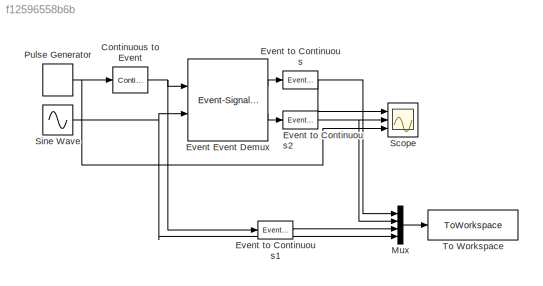
MODEL slx_f12596558b6b
KIND model
CONFIG AbsTol = auto
CONFIG EnableMultiTasking = off
CONFIG FixedStep = auto
CONFIG MaxStep = auto
CONFIG MinStep = auto
CONFIG RelTol = 1e-3
CONFIG SampleTimeConstraint = Unconstrained
CONFIG SolverName = VariableStepAuto
CONFIG StartTime = 0.0
CONFIG StopTime = 10.0
BLOCK [Reference] Continuous to Event  REF=neuromorphic_blocks/Events Transmission Blocks/Continuous to Event  (lib defined in slx_48105648e755)
  Ports = [1, 1]
  SourceBlock = neuromorphic_blocks/Events Transmission Blocks/Continuous to Event
  SourceProductName = Neuromorphic Toolbox
  SourceType = Continuous to Event
BLOCK [Reference] Event Event Demux  REF=neuromorphic_blocks/Auxiliary Blocks/Event-Signal Multiplier  (lib defined in slx_48105648e755)
  Ports = [2, 2]
  SourceBlock = neuromorphic_blocks/Auxiliary Blocks/Event-Signal Multiplier
  SourceProductName = NeurCont Toolbox
  SourceType = Event Demux
BLOCK [Reference] Event to Continuous  REF=neuromorphic_blocks/Events Transmission Blocks/Event to Continuous  (lib defined in slx_48105648e755)
  Ports = [1, 1]
  SourceBlock = neuromorphic_blocks/Events Transmission Blocks/Event to Continuous
  SourceProductName = Neuromorphic Toolbox
  SourceType = Event to Continuous
BLOCK [Reference] Event to Continuous1  REF=neuromorphic_blocks/Events Transmission Blocks/Event to Continuous  (lib defined in slx_48105648e755)
  Ports = [1, 1]
  SourceBlock = neuromorphic_blocks/Events Transmission Blocks/Event to Continuous
  SourceProductName = Neuromorphic Toolbox
  SourceType = Event to Continuous
BLOCK [Reference] Event to Continuous2  REF=neuromorphic_blocks/Events Transmission Blocks/Event to Continuous  (lib defined in slx_48105648e755)
  Ports = [1, 1]
  SourceBlock = neuromorphic_blocks/Events Transmission Blocks/Event to Continuous
  SourceProductName = Neuromorphic Toolbox
  SourceType = Event to Continuous
BLOCK [Mux] Mux
  DisplayOption = bar
  Ports = [4, 1]
BLOCK [DiscretePulseGenerator] Pulse Generator
  Amplitude = 20
  Period = 0.3
  Ports = [0, 1]
  PulseType = Time based
  PulseWidth = 5
BLOCK [Scope] Scope
  Floating = off
  NumInputPorts = 3
  Ports = [3]
  ScopeSpecificationString = Simulink.scopes.TimeScopeBlockCfg('CurrentConfiguration', extmgr.ConfigurationSet(extmgr.Configuration('Core','General UI',true),extmgr.Configuration('Core','Source UI',true),extmgr.Configuration('Sources','WiredSimulink',true,'SampleTime','0.001'),extmgr.Configuration('Visuals','Time Domain',true,'SerializedDisplays',{struct('MinYLimReal','-0.125','MaxYLimReal','1.125','YLabelReal','','MinYLimMag...<+2677ch>
BLOCK [Sin] Sine Wave
  Ports = [0, 1]
  SampleTime = 0
BLOCK [ToWorkspace] To Workspace
  FixptAsFi = on
  MaxDataPoints = inf
  Ports = [1]
  SampleTime = 0.001
  SaveFormat = Structure With Time
  VariableName = eventdemux
NET Continuous to Event:1 -> Event Event Demux:1, Event to Continuous1:1
LINE Event Event Demux:1 -> Event to Continuous:1
LINE Event Event Demux:2 -> Event to Continuous2:1
LINE Event to Continuous1:1 -> Mux:3
NET Event to Continuous2:1 -> Mux:2, Scope:2
NET Event to Continuous:1 -> Mux:1, Scope:1
LINE Mux:1 -> To Workspace:1
NET Pulse Generator:1 -> Continuous to Event:1, Scope:3
NET Sine Wave:1 -> Event Event Demux:2, Mux:4
note: NET lines group one-source signal fan-out (src -> all destinations, sorted); 1:1 wires keep LINE
